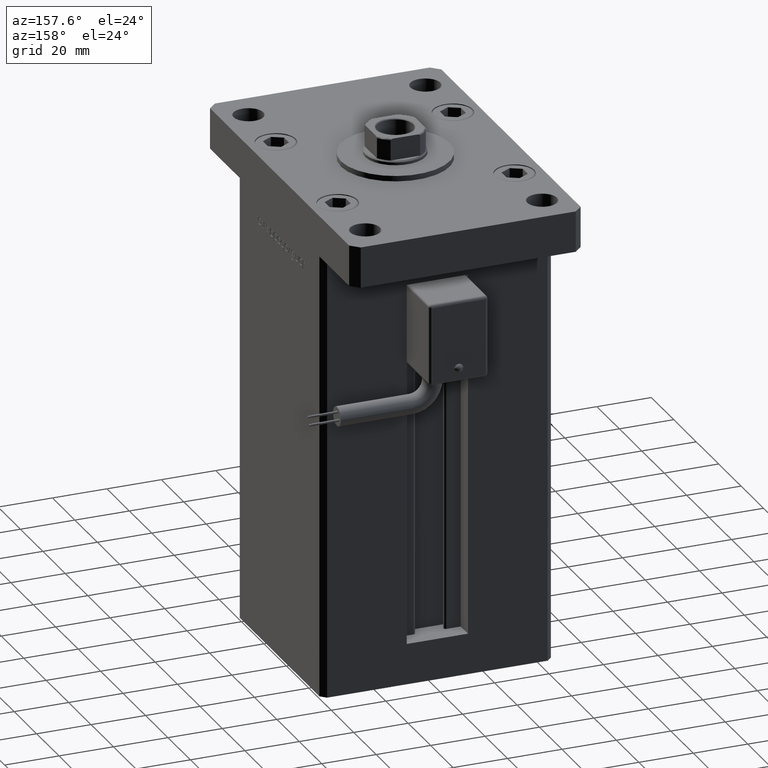
[diagram: clean part render]
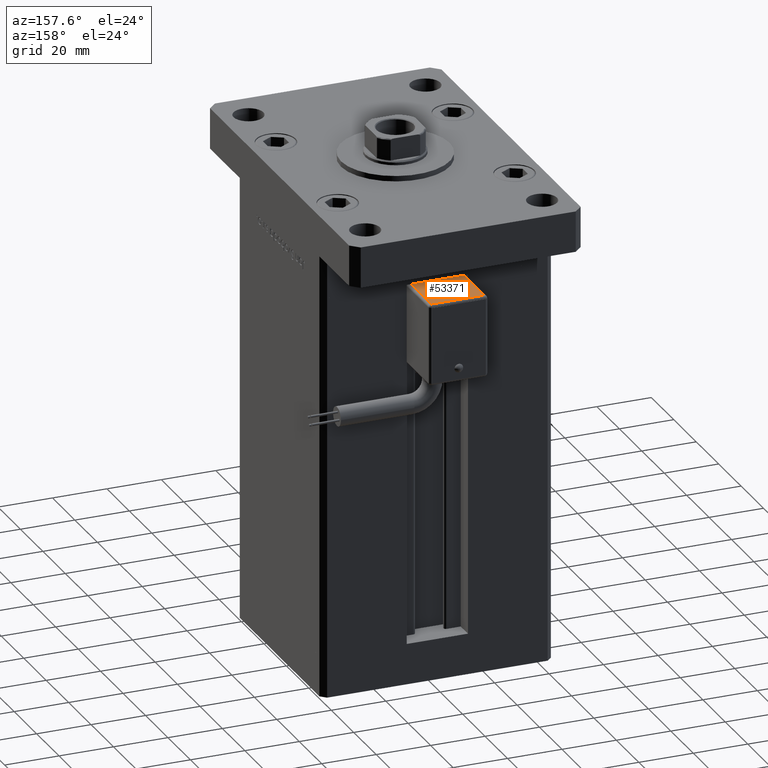
[diagram: same view with one face highlighted and labeled with its STEP entity id]
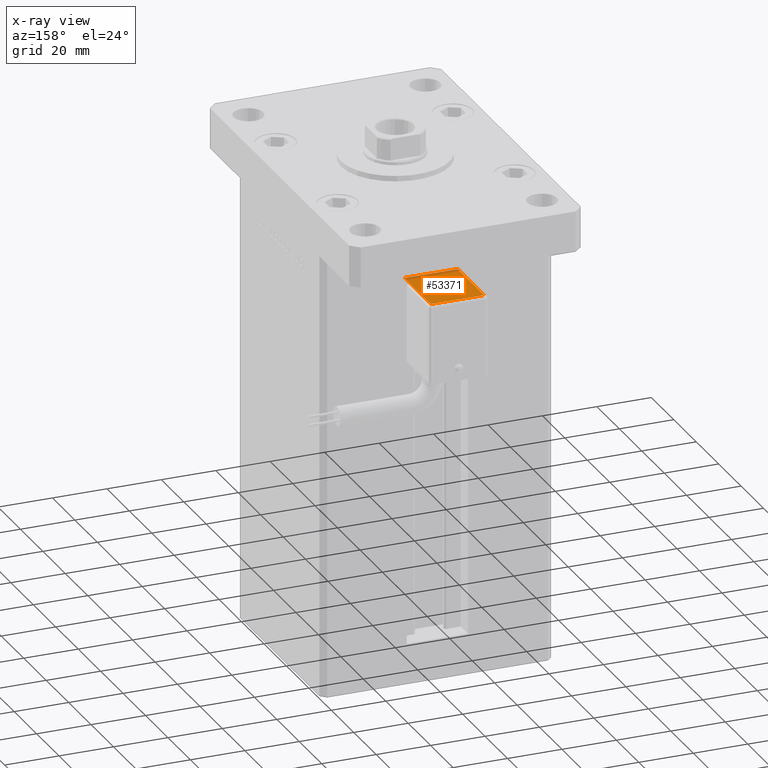
[diagram: x-ray of the same camera — body ghosted, the highlighted face saturated]
A machine part, auxiliary view. The second image highlights one B-rep face of the part: STEP entity #53371.
The next image is the same camera in x-ray: the body ghosted, the highlighted face saturated — about 8% of this face is hidden behind the body in this view.
In plain terms, the highlighted planar face has unit normal (0, 0, -1).
Its self-contained STEP definition (entity closure, byte-faithful):
#3702 = VECTOR ( 'NONE', #4314, 1000.000000000000000 ) ;
#4314 = DIRECTION ( 'NONE',  ( -1.000000000000000000, 0.000000000000000000, -2.220446049250000002E-16 ) ) ;
#5234 = VECTOR ( 'NONE', #11556, 1000.000000000000000 ) ;
#6516 = VERTEX_POINT ( 'NONE', #30467 ) ;
#8720 = CARTESIAN_POINT ( 'NONE',  ( -9.799999999999998934, 50.50000000000000000, -25.00000000000000000 ) ) ;
#9124 = VECTOR ( 'NONE', #21271, 1000.000000000000000 ) ;
#9811 = DIRECTION ( 'NONE',  ( 0.000000000000000000, -1.000000000000000000, -1.400000000000000069E-16 ) ) ;
#11556 = DIRECTION ( 'NONE',  ( 1.000000000000000000, 0.000000000000000000, 2.220446049250000002E-16 ) ) ;
#13650 = ORIENTED_EDGE ( 'NONE', *, *, #18221, .T. ) ;
#14110 = CARTESIAN_POINT ( 'NONE',  ( 10.80000000000000071, 51.50000000000000000, -25.00000000000000000 ) ) ;
#16664 = LINE ( 'NONE', #51875, #5234 ) ;
#18221 = EDGE_CURVE ( 'NONE', #29683, #39163, #39205, .T. ) ;
#18418 = ORIENTED_EDGE ( 'NONE', *, *, #39081, .T. ) ;
#20985 = CARTESIAN_POINT ( 'NONE',  ( -9.799999999999998934, 51.50000000000000000, -25.00000000000000000 ) ) ;
#21271 = DIRECTION ( 'NONE',  ( 3.108624468950000014E-32, -1.000000000000000000, -1.400000000000000069E-16 ) ) ;
#24982 = EDGE_LOOP ( 'NONE', ( #48607, #38251, #18418, #13650 ) ) ;
#26177 = DIRECTION ( 'NONE',  ( -3.108624468950000014E-32, 1.000000000000000000, 1.400000000000000069E-16 ) ) ;
#29683 = VERTEX_POINT ( 'NONE', #43164 ) ;
#30467 = CARTESIAN_POINT ( 'NONE',  ( 9.799999999999998934, 27.00000000000000000, -25.00000000000000000 ) ) ;
#31559 = DIRECTION ( 'NONE',  ( 2.220446049250000002E-16, 1.400000000000000069E-16, -1.000000000000000000 ) ) ;
#33349 = CARTESIAN_POINT ( 'NONE',  ( 9.799999999999998934, 51.50000000000000000, -25.00000000000000000 ) ) ;
#34642 = CARTESIAN_POINT ( 'NONE',  ( 10.80000000000000071, 50.50000000000000000, -25.00000000000000000 ) ) ;
#36285 = VECTOR ( 'NONE', #26177, 1000.000000000000000 ) ;
#38251 = ORIENTED_EDGE ( 'NONE', *, *, #40155, .T. ) ;
#39081 = EDGE_CURVE ( 'NONE', #6516, #29683, #47638, .T. ) ;
#39163 = VERTEX_POINT ( 'NONE', #8720 ) ;
#39205 = LINE ( 'NONE', #34642, #3702 ) ;
#40155 = EDGE_CURVE ( 'NONE', #42762, #6516, #16664, .T. ) ;
#42762 = VERTEX_POINT ( 'NONE', #51836 ) ;
#43164 = CARTESIAN_POINT ( 'NONE',  ( 9.799999999999998934, 50.50000000000000000, -25.00000000000000000 ) ) ;
#45846 = PLANE ( 'NONE',  #47596 ) ;
#46254 = EDGE_CURVE ( 'NONE', #39163, #42762, #52174, .T. ) ;
#47596 = AXIS2_PLACEMENT_3D ( 'NONE', #14110, #31559, #9811 ) ;
#47638 = LINE ( 'NONE', #33349, #36285 ) ;
#48607 = ORIENTED_EDGE ( 'NONE', *, *, #46254, .T. ) ;
#49296 = FACE_OUTER_BOUND ( 'NONE', #24982, .T. ) ;
#51836 = CARTESIAN_POINT ( 'NONE',  ( -9.799999999999998934, 27.00000000000000000, -25.00000000000000000 ) ) ;
#51875 = CARTESIAN_POINT ( 'NONE',  ( 10.80000000000000071, 27.00000000000000000, -25.00000000000000000 ) ) ;
#52174 = LINE ( 'NONE', #20985, #9124 ) ;
#53371 = ADVANCED_FACE ( 'NONE', ( #49296 ), #45846, .F. ) ;